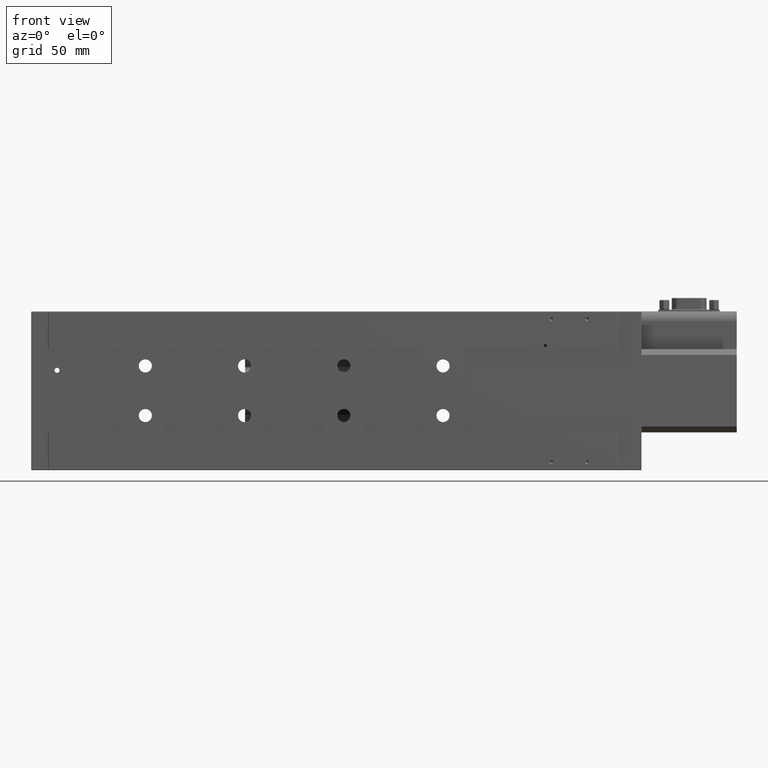
[diagram: clean part render]
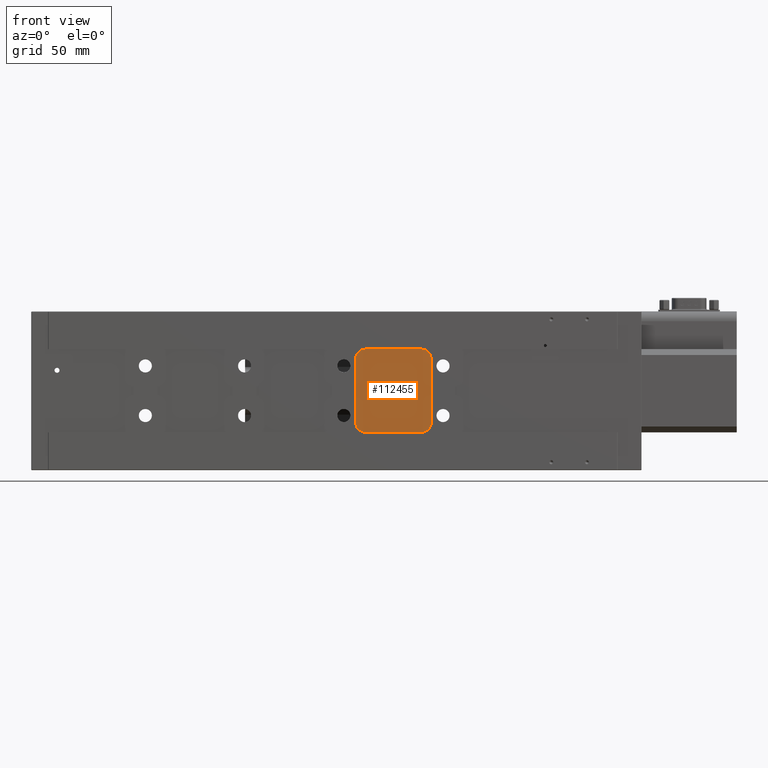
[diagram: same view with one face highlighted and labeled with its STEP entity id]
A machine part, front view. The second image highlights one B-rep face of the part: STEP entity #112455.
In plain terms, the highlighted planar face has unit normal (-0, 1, 0).
Its self-contained STEP definition (entity closure, byte-faithful):
#424 = DIRECTION ( 'NONE',  ( 1.239088197126289600E-016, 0.0000000000000000000, -1.000000000000000000 ) ) ;
#1195 = DIRECTION ( 'NONE',  ( 0.0000000000000000000, 0.0000000000000000000, 1.000000000000000000 ) ) ;
#1196 = CIRCLE ( 'NONE', #3924, 4.999999999999997300 ) ;
#2872 = CARTESIAN_POINT ( 'NONE',  ( 168.4999999999999700, 0.5000000000000000000, -23.99999999999997900 ) ) ;
#3924 = AXIS2_PLACEMENT_3D ( 'NONE', #111580, #92671, #36650 ) ;
#7395 = CARTESIAN_POINT ( 'NONE',  ( 196.5000000000000000, 0.5000000000000000000, -23.99999999999997200 ) ) ;
#8372 = VERTEX_POINT ( 'NONE', #76303 ) ;
#10595 = CARTESIAN_POINT ( 'NONE',  ( 196.5000000000000000, 0.5000000000000000000, -61.00000000000002100 ) ) ;
#11069 = CARTESIAN_POINT ( 'NONE',  ( 196.5000000000000000, 0.5000000000000000000, -18.99999999999997200 ) ) ;
#13102 = FACE_OUTER_BOUND ( 'NONE', #22687, .T. ) ;
#13665 = VECTOR ( 'NONE', #424, 1000.000000000000000 ) ;
#14327 = ORIENTED_EDGE ( 'NONE', *, *, #119622, .T. ) ;
#17095 = CIRCLE ( 'NONE', #117039, 4.999999999999997300 ) ;
#19484 = AXIS2_PLACEMENT_3D ( 'NONE', #7395, #72600, #26430 ) ;
#20437 = CARTESIAN_POINT ( 'NONE',  ( 151.9999999999999700, 0.5000000000000000000, -40.00000000000000000 ) ) ;
#21566 = ORIENTED_EDGE ( 'NONE', *, *, #82787, .T. ) ;
#21927 = CARTESIAN_POINT ( 'NONE',  ( 201.5000000000000000, 0.5000000000000000000, -23.99999999999997200 ) ) ;
#22336 = DIRECTION ( 'NONE',  ( 0.0000000000000000000, -1.000000000000000000, -0.0000000000000000000 ) ) ;
#22687 = EDGE_LOOP ( 'NONE', ( #21566, #84516, #55218, #98942, #40099, #77980, #14327, #45543 ) ) ;
#22832 = VERTEX_POINT ( 'NONE', #21927 ) ;
#26430 = DIRECTION ( 'NONE',  ( 0.0000000000000000000, 0.0000000000000000000, 1.000000000000000000 ) ) ;
#29557 = DIRECTION ( 'NONE',  ( 0.0000000000000000000, -0.0000000000000000000, 1.000000000000000000 ) ) ;
#31507 = EDGE_CURVE ( 'NONE', #22832, #103350, #50084, .T. ) ;
#34390 = AXIS2_PLACEMENT_3D ( 'NONE', #2872, #22336, #97786 ) ;
#34730 = AXIS2_PLACEMENT_3D ( 'NONE', #20437, #76924, #29557 ) ;
#36259 = VECTOR ( 'NONE', #54453, 1000.000000000000000 ) ;
#36650 = DIRECTION ( 'NONE',  ( 0.0000000000000000000, 0.0000000000000000000, 1.000000000000000000 ) ) ;
#39085 = DIRECTION ( 'NONE',  ( -1.000000000000000000, -0.0000000000000000000, -2.739037067331800100E-016 ) ) ;
#40099 = ORIENTED_EDGE ( 'NONE', *, *, #63685, .T. ) ;
#40328 = LINE ( 'NONE', #93758, #13665 ) ;
#45543 = ORIENTED_EDGE ( 'NONE', *, *, #60571, .T. ) ;
#49415 = CARTESIAN_POINT ( 'NONE',  ( 168.4999999999999700, 0.5000000000000000000, -18.99999999999998200 ) ) ;
#50084 = CIRCLE ( 'NONE', #19484, 5.000000000000000900 ) ;
#52605 = VERTEX_POINT ( 'NONE', #10595 ) ;
#54453 = DIRECTION ( 'NONE',  ( -1.652117596168385800E-016, -0.0000000000000000000, 1.000000000000000000 ) ) ;
#55218 = ORIENTED_EDGE ( 'NONE', *, *, #112496, .T. ) ;
#57816 = DIRECTION ( 'NONE',  ( 0.0000000000000000000, -1.000000000000000000, -0.0000000000000000000 ) ) ;
#58350 = LINE ( 'NONE', #111650, #36259 ) ;
#60571 = EDGE_CURVE ( 'NONE', #52605, #70967, #17095, .T. ) ;
#61151 = DIRECTION ( 'NONE',  ( 1.000000000000000000, 0.0000000000000000000, 0.0000000000000000000 ) ) ;
#62288 = LINE ( 'NONE', #106886, #84402 ) ;
#63685 = EDGE_CURVE ( 'NONE', #66474, #8372, #40328, .T. ) ;
#64818 = VECTOR ( 'NONE', #39085, 1000.000000000000000 ) ;
#66474 = VERTEX_POINT ( 'NONE', #109602 ) ;
#70967 = VERTEX_POINT ( 'NONE', #82077 ) ;
#72600 = DIRECTION ( 'NONE',  ( 0.0000000000000000000, -1.000000000000000000, -0.0000000000000000000 ) ) ;
#74351 = VERTEX_POINT ( 'NONE', #49415 ) ;
#75736 = PLANE ( 'NONE',  #34730 ) ;
#76303 = CARTESIAN_POINT ( 'NONE',  ( 163.5000000000000000, 0.5000000000000000000, -56.00000000000001400 ) ) ;
#76924 = DIRECTION ( 'NONE',  ( -0.0000000000000000000, 1.000000000000000000, 0.0000000000000000000 ) ) ;
#77980 = ORIENTED_EDGE ( 'NONE', *, *, #108395, .T. ) ;
#82077 = CARTESIAN_POINT ( 'NONE',  ( 201.5000000000000000, 0.5000000000000000000, -56.00000000000002100 ) ) ;
#82787 = EDGE_CURVE ( 'NONE', #70967, #22832, #58350, .T. ) ;
#83808 = VERTEX_POINT ( 'NONE', #97149 ) ;
#84402 = VECTOR ( 'NONE', #61151, 1000.000000000000000 ) ;
#84516 = ORIENTED_EDGE ( 'NONE', *, *, #31507, .T. ) ;
#85634 = CARTESIAN_POINT ( 'NONE',  ( 163.5000000000000000, 0.5000000000000000000, -18.99999999999998200 ) ) ;
#92671 = DIRECTION ( 'NONE',  ( 0.0000000000000000000, -1.000000000000000000, -0.0000000000000000000 ) ) ;
#93758 = CARTESIAN_POINT ( 'NONE',  ( 163.5000000000000000, 0.5000000000000000000, -18.99999999999998200 ) ) ;
#97149 = CARTESIAN_POINT ( 'NONE',  ( 168.5000000000000000, 0.5000000000000000000, -61.00000000000002100 ) ) ;
#97786 = DIRECTION ( 'NONE',  ( 0.0000000000000000000, 0.0000000000000000000, 1.000000000000000000 ) ) ;
#98942 = ORIENTED_EDGE ( 'NONE', *, *, #110462, .T. ) ;
#103350 = VERTEX_POINT ( 'NONE', #11069 ) ;
#104805 = CARTESIAN_POINT ( 'NONE',  ( 196.5000000000000000, 0.5000000000000000000, -56.00000000000002100 ) ) ;
#106886 = CARTESIAN_POINT ( 'NONE',  ( 163.5000000000000000, 0.5000000000000000000, -61.00000000000002100 ) ) ;
#106936 = CIRCLE ( 'NONE', #34390, 5.000000000000000900 ) ;
#108395 = EDGE_CURVE ( 'NONE', #8372, #83808, #1196, .T. ) ;
#109602 = CARTESIAN_POINT ( 'NONE',  ( 163.5000000000000000, 0.5000000000000000000, -23.99999999999997900 ) ) ;
#110462 = EDGE_CURVE ( 'NONE', #74351, #66474, #106936, .T. ) ;
#111580 = CARTESIAN_POINT ( 'NONE',  ( 168.5000000000000000, 0.5000000000000000000, -56.00000000000002100 ) ) ;
#111650 = CARTESIAN_POINT ( 'NONE',  ( 201.5000000000000000, 0.5000000000000000000, -18.99999999999997200 ) ) ;
#112455 = ADVANCED_FACE ( 'NONE', ( #13102 ), #75736, .F. ) ;
#112496 = EDGE_CURVE ( 'NONE', #103350, #74351, #113405, .T. ) ;
#113405 = LINE ( 'NONE', #85634, #64818 ) ;
#117039 = AXIS2_PLACEMENT_3D ( 'NONE', #104805, #57816, #1195 ) ;
#119622 = EDGE_CURVE ( 'NONE', #83808, #52605, #62288, .T. ) ;